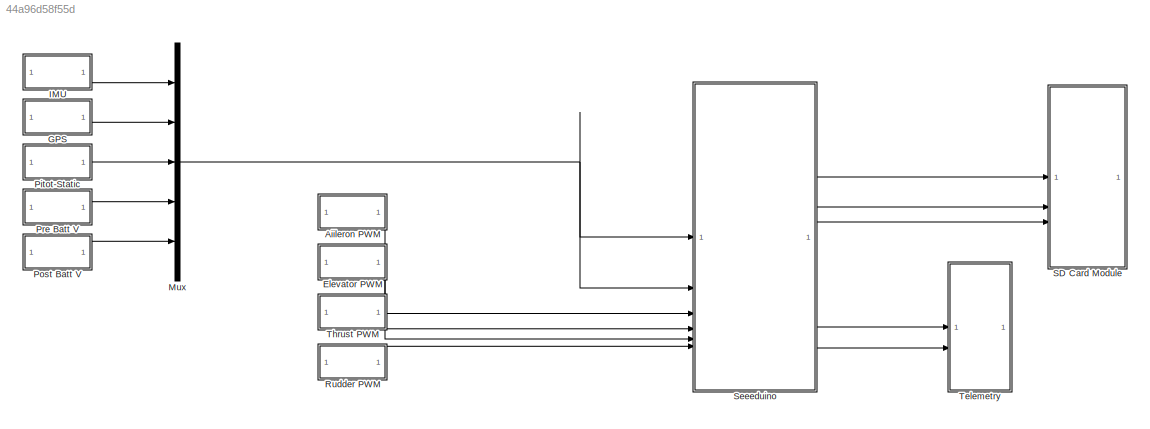
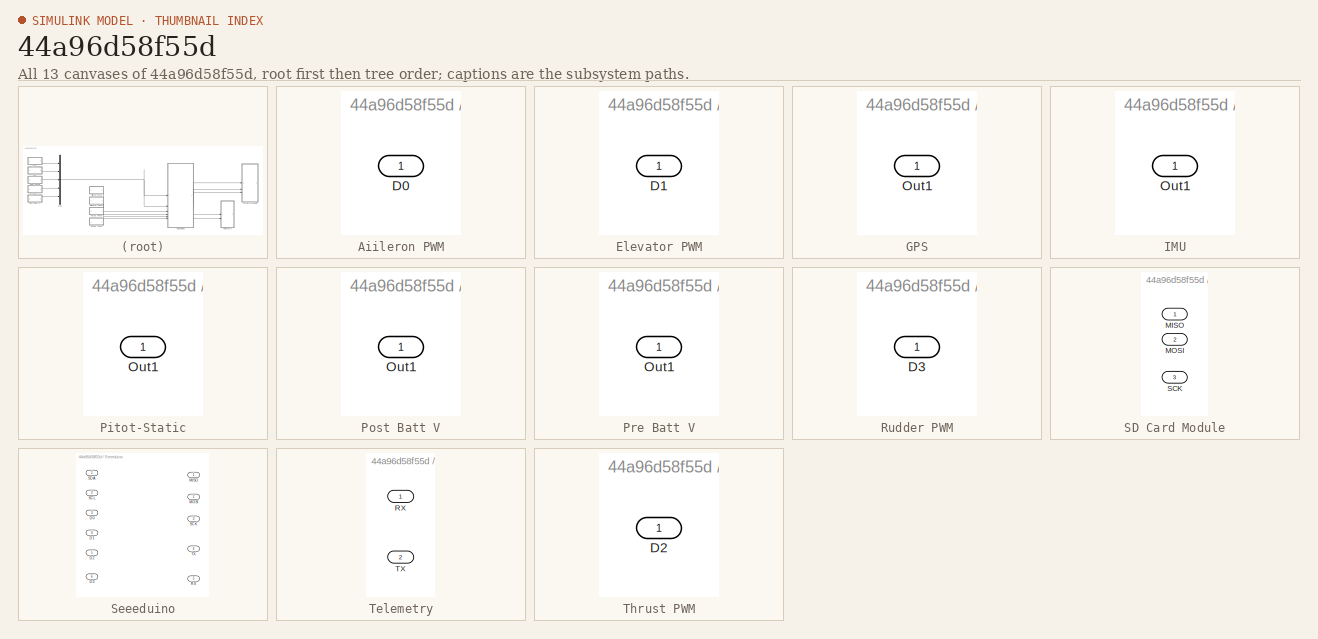
[diagram: thumbnail index - all 13 canvases of the model, root first then tree order]
MODEL slx_44a96d58f55d
KIND model
CONFIG AbsTol = auto
CONFIG EnableMultiTasking = off
CONFIG FixedStep = auto
CONFIG MaxStep = auto
CONFIG MinStep = auto
CONFIG RelTol = 1e-3
CONFIG SampleTimeConstraint = Unconstrained
CONFIG SolverName = VariableStepAuto
CONFIG StartTime = 0.0
CONFIG StopTime = 10.0
BLOCK [SubSystem] Aiileron PWM
  NameLocation = left
BLOCK [Outport] Aiileron PWM/D0
BLOCK [SubSystem] Elevator PWM
  NameLocation = left
BLOCK [Outport] Elevator PWM/D1
BLOCK [SubSystem] GPS
  NameLocation = left
BLOCK [Outport] GPS/Out1
BLOCK [SubSystem] IMU
  NameLocation = left
BLOCK [Outport] IMU/Out1
BLOCK [Mux] Mux
  DisplayOption = bar
  Inputs = 5
BLOCK [SubSystem] Pitot-Static
  NameLocation = left
BLOCK [Outport] Pitot-Static/Out1
BLOCK [SubSystem] Post Batt V
  NameLocation = left
BLOCK [Outport] Post Batt V/Out1
BLOCK [SubSystem] Pre Batt V
  NameLocation = left
BLOCK [Outport] Pre Batt V/Out1
BLOCK [SubSystem] Rudder PWM
  NameLocation = left
BLOCK [Outport] Rudder PWM/D3
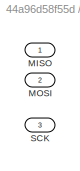
BLOCK [SubSystem] SD Card Module
BLOCK [Inport] SD Card Module/MISO
BLOCK [Inport] SD Card Module/MOSI
  Port = 2
BLOCK [Inport] SD Card Module/SCK
  Port = 3
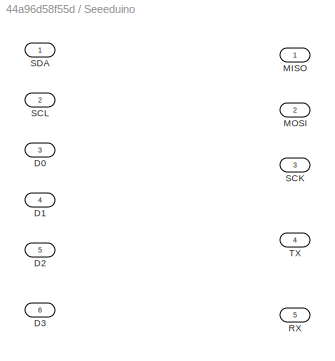
BLOCK [SubSystem] Seeeduino
BLOCK [Inport] Seeeduino/D0
  Port = 3
BLOCK [Inport] Seeeduino/D1
  Port = 4
BLOCK [Inport] Seeeduino/D2
  Port = 5
BLOCK [Inport] Seeeduino/D3
  Port = 6
BLOCK [Outport] Seeeduino/MISO
BLOCK [Outport] Seeeduino/MOSI
  Port = 2
BLOCK [Outport] Seeeduino/RX
  Port = 5
BLOCK [Outport] Seeeduino/SCK
  Port = 3
BLOCK [Inport] Seeeduino/SCL
  Port = 2
BLOCK [Inport] Seeeduino/SDA
BLOCK [Outport] Seeeduino/TX
  Port = 4
BLOCK [SubSystem] Telemetry
BLOCK [Inport] Telemetry/RX
BLOCK [Inport] Telemetry/TX
  Port = 2
BLOCK [SubSystem] Thrust PWM
  NameLocation = left
BLOCK [Outport] Thrust PWM/D2
LINE Aiileron PWM:1 -> Seeeduino:3
LINE Elevator PWM:1 -> Seeeduino:4
LINE GPS:1 -> Mux:2
LINE IMU:1 -> Mux:1
NET Mux:1 -> Seeeduino:1, Seeeduino:2
LINE Pitot-Static:1 -> Mux:3
LINE Post Batt V:1 -> Mux:5
LINE Pre Batt V:1 -> Mux:4
LINE Rudder PWM:1 -> Seeeduino:6
LINE Seeeduino:1 -> SD Card Module:1
LINE Seeeduino:2 -> SD Card Module:2
LINE Seeeduino:3 -> SD Card Module:3
LINE Seeeduino:4 -> Telemetry:1
LINE Seeeduino:5 -> Telemetry:2
LINE Thrust PWM:1 -> Seeeduino:5
note: NET lines group one-source signal fan-out (src -> all destinations, sorted); 1:1 wires keep LINE
